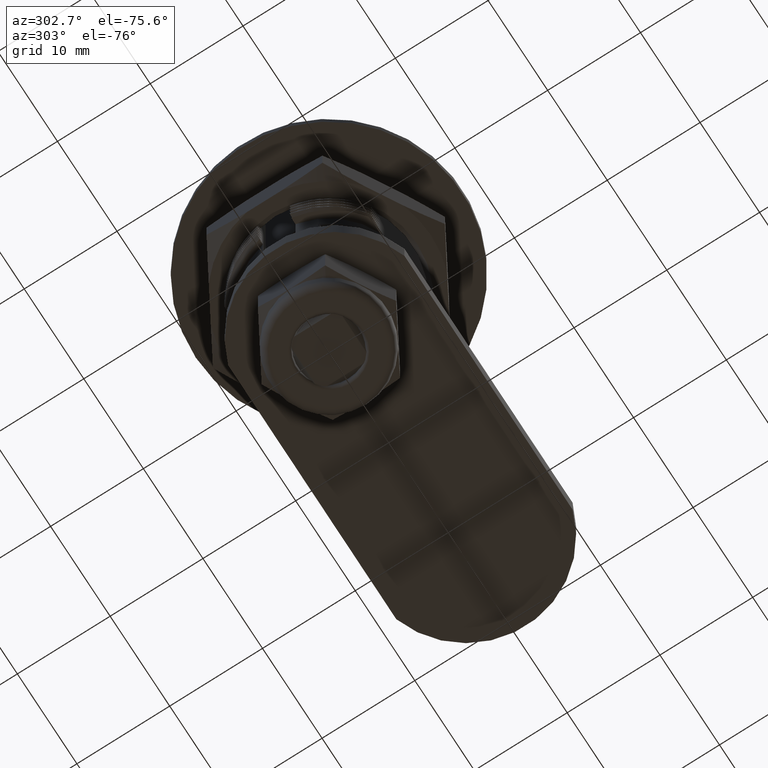
[diagram: clean part render]
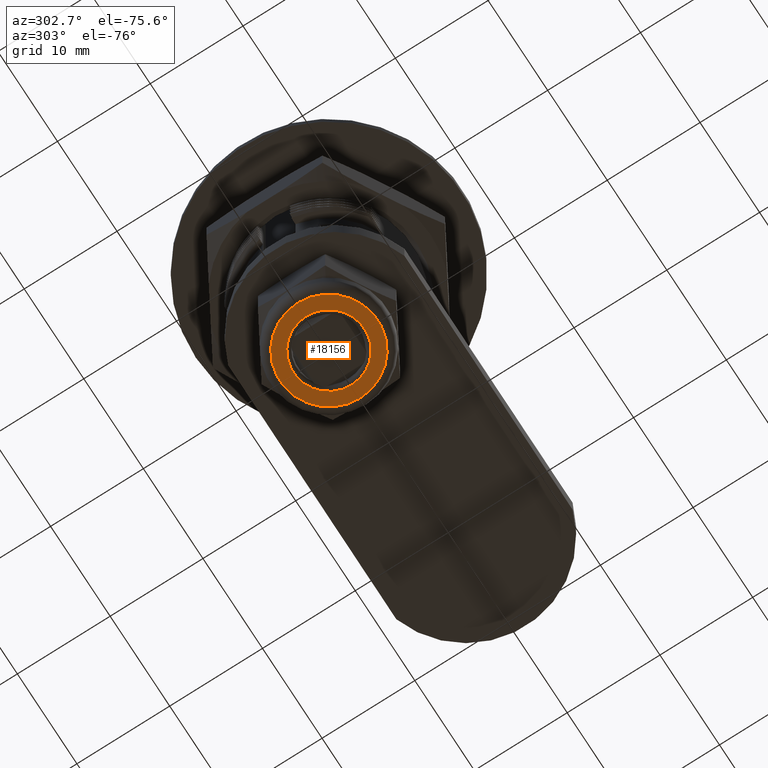
[diagram: same view with one face highlighted and labeled with its STEP entity id]
A machine part, auxiliary view. The second image highlights one B-rep face of the part: STEP entity #18156.
In plain terms, the highlighted planar face has unit normal (0, 0, -1).
Its self-contained STEP definition (entity closure, byte-faithful):
#4379=PLANE('',#18763);
#4584=FACE_BOUND('',#6474,.T.);
#5440=FACE_OUTER_BOUND('',#6473,.T.);
#6473=EDGE_LOOP('',(#16349));
#6474=EDGE_LOOP('',(#16350));
#6838=CIRCLE('',#18760,3.8235);
#6840=CIRCLE('',#18764,5.27868417743718);
#8446=VERTEX_POINT('',#52253);
#8448=VERTEX_POINT('',#52259);
#11139=EDGE_CURVE('',#8446,#8446,#6838,.T.);
#11141=EDGE_CURVE('',#8448,#8448,#6840,.T.);
#16349=ORIENTED_EDGE('',*,*,#11141,.T.);
#16350=ORIENTED_EDGE('',*,*,#11139,.T.);
#18156=ADVANCED_FACE('',(#5440,#4584),#4379,.T.);
#18760=AXIS2_PLACEMENT_3D('',#52254,#20160,#20161);
#18763=AXIS2_PLACEMENT_3D('',#52258,#20166,#20167);
#18764=AXIS2_PLACEMENT_3D('',#52260,#20168,#20169);
#20160=DIRECTION('center_axis',(0.,0.,1.));
#20161=DIRECTION('ref_axis',(-1.,-1.22464679914735E-16,0.));
#20166=DIRECTION('center_axis',(0.,0.,-1.));
#20167=DIRECTION('ref_axis',(-1.,0.,0.));
#20168=DIRECTION('center_axis',(0.,0.,-1.));
#20169=DIRECTION('ref_axis',(-1.,0.,0.));
#52253=CARTESIAN_POINT('',(3.8235,9.36487407307981E-16,-35.3));
#52254=CARTESIAN_POINT('Origin',(0.,0.,-35.3));
#52258=CARTESIAN_POINT('Origin',(0.,0.,-35.3));
#52259=CARTESIAN_POINT('',(5.27868417743718,-6.46452368160822E-16,-35.3));
#52260=CARTESIAN_POINT('Origin',(0.,0.,-35.3));